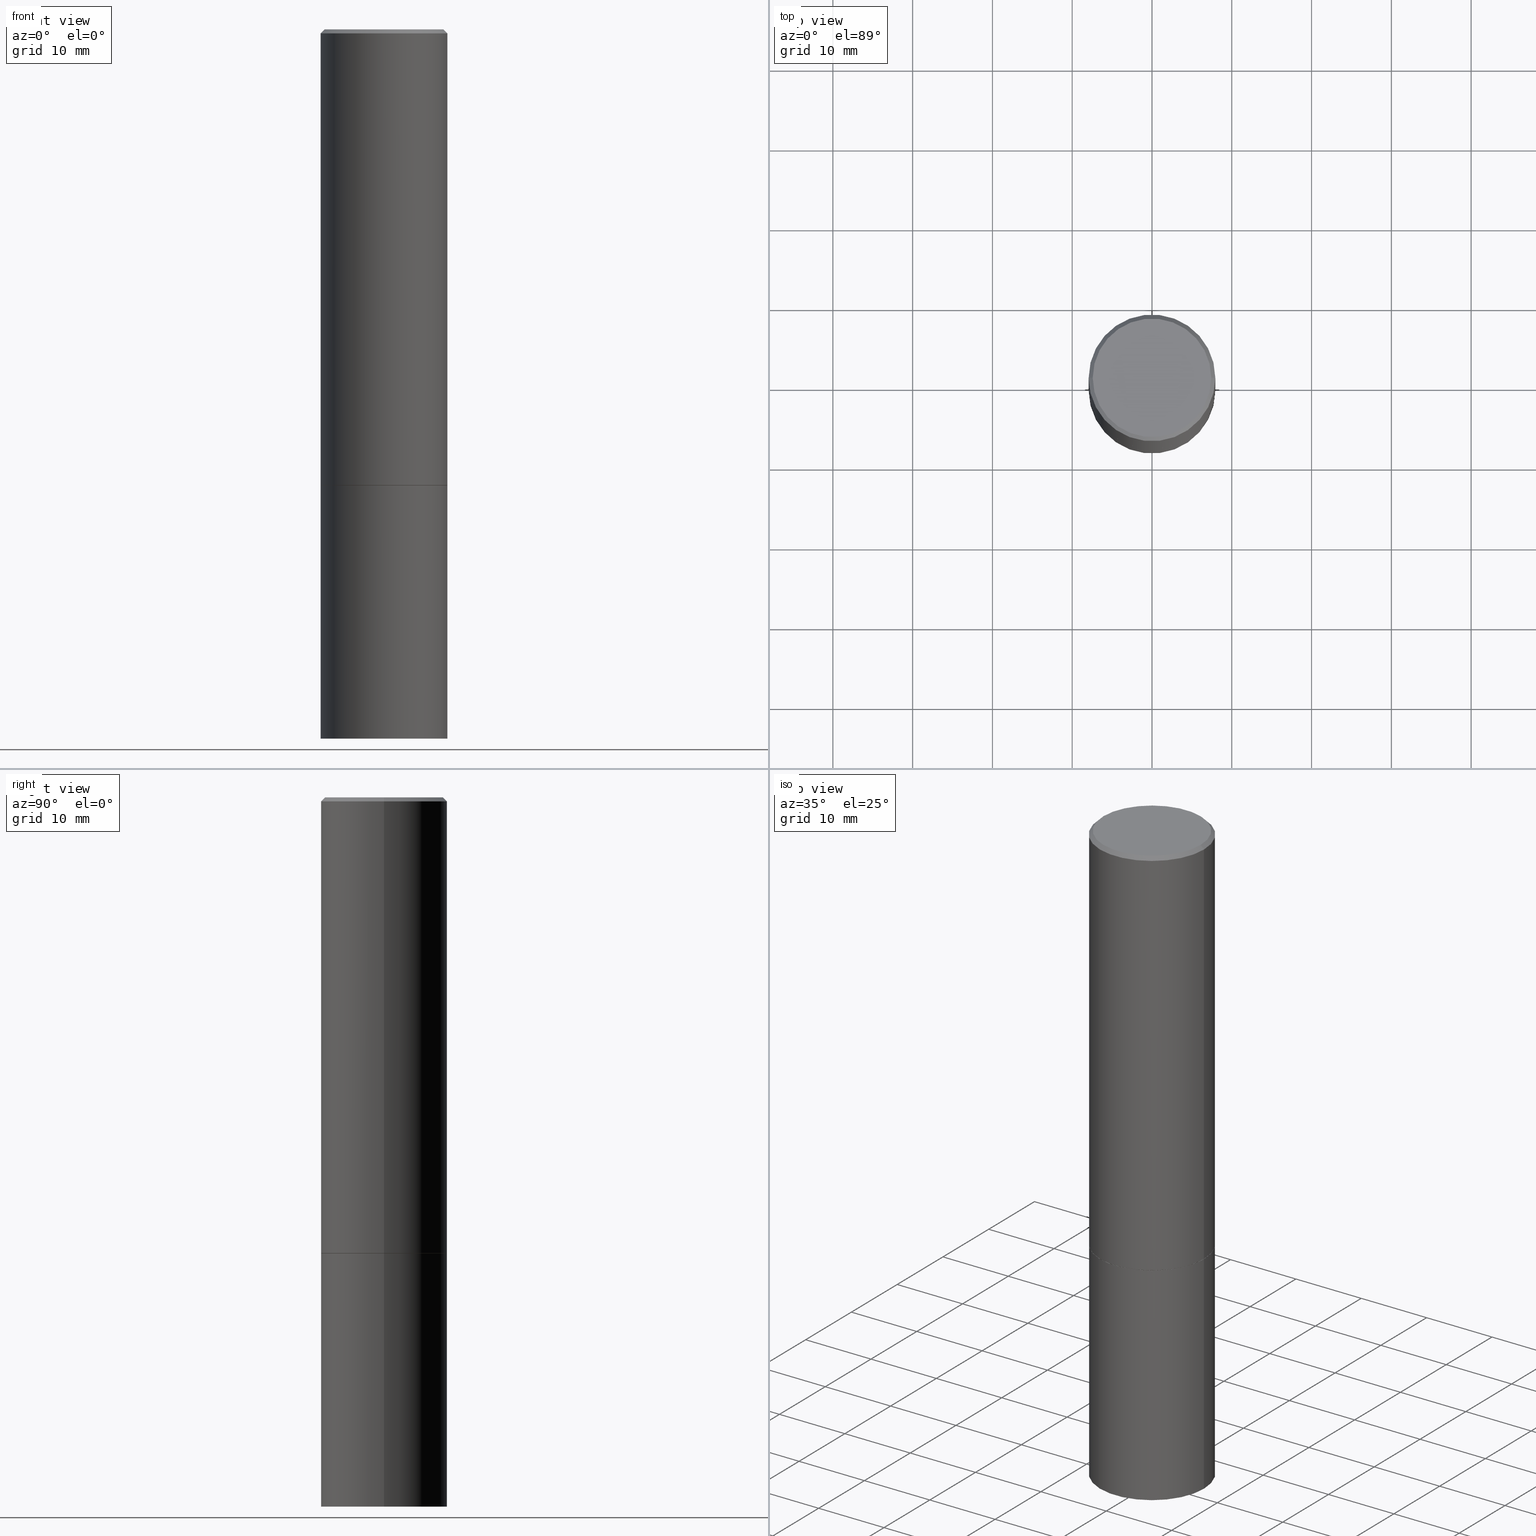
[diagram: canonical four-view strip — front | top / right | iso, engineering-drawing reading convention]
A machine part, canonical four-view strip (front | top / right | iso — engineering-drawing reading convention). The complete STEP part file that produces these views, byte-faithful:
ISO-10303-21;
HEADER;
FILE_DESCRIPTION (( 'STEP AP203' ),
    '1' );
FILE_NAME ('30024.STEP',
    '2023-03-21T20:21:08',
    ( '' ),
    ( '' ),
    'SwSTEP 2.0',
    'SolidWorks 2022',
    '' );
FILE_SCHEMA (( 'CONFIG_CONTROL_DESIGN' ));
ENDSEC;

DATA;
#1 = APPLICATION_PROTOCOL_DEFINITION ( 'international standard', 'config_control_design', 1994, #116 ) ;
#2 = EDGE_LOOP ( 'NONE', ( #200, #54, #253 ) ) ;
#3 = CARTESIAN_POINT ( 'NONE',  ( 8.517872225976000763E-29, -1.216474757820433086E-14, -3.483622568974051870 ) ) ;
#4 = ORIENTED_EDGE ( 'NONE', *, *, #162, .T. ) ;
#5 = DIRECTION ( 'NONE',  ( -2.445468806185136597E-29, 3.491481338843145583E-15, 1.000000000000000000 ) ) ;
#6 = CARTESIAN_POINT ( 'NONE',  ( 0.3124999999999997224, -1.436409031025461138E-14, -3.500000000000000000 ) ) ;
#7 = DIRECTION ( 'NONE',  ( -2.445468806185136597E-29, 3.491481338843145583E-15, 1.000000000000000000 ) ) ;
#8 = EDGE_CURVE ( 'NONE', #82, #297, #304, .T. ) ;
#9 = DIRECTION ( 'NONE',  ( 2.445468806185136597E-29, -3.491481338843145583E-15, -1.000000000000000000 ) ) ;
#10 = CONICAL_SURFACE ( 'NONE', #38, 0.3114999999999999991, 0.7853981633972775267 ) ;
#11 = DIRECTION ( 'NONE',  ( -2.445468806185136597E-29, 3.491481338843145583E-15, 1.000000000000000000 ) ) ;
#12 = CARTESIAN_POINT ( 'NONE',  ( 4.890937612370292426E-31, -6.982962677686317493E-17, -0.02000000000000007674 ) ) ;
#13 = AXIS2_PLACEMENT_3D ( 'NONE', #146, #5, #374 ) ;
#14 = CARTESIAN_POINT ( 'NONE',  ( 5.502304813916556222E-29, -7.855833012397076871E-15, -2.249999999999999556 ) ) ;
#15 = ORIENTED_EDGE ( 'NONE', *, *, #185, .F. ) ;
#16 = LINE ( 'NONE', #377, #122 ) ;
#17 = ORIENTED_EDGE ( 'NONE', *, *, #120, .T. ) ;
#18 = EDGE_CURVE ( 'NONE', #249, #81, #16, .T. ) ;
#19 = DIRECTION ( 'NONE',  ( 1.000000000000000000, -6.982962677686266711E-15, 4.876176775795936353E-29 ) ) ;
#20 = CARTESIAN_POINT ( 'NONE',  ( -0.3114999999999999991, -5.642492390504364798E-15, -2.250000000000000000 ) ) ;
#21 = CALENDAR_DATE ( 2023, 21, 3 ) ;
#22 = EDGE_CURVE ( 'NONE', #269, #326, #254, .T. ) ;
#23 = PERSON_AND_ORGANIZATION_ROLE ( 'design_supplier' ) ;
#24 = ORIENTED_EDGE ( 'NONE', *, *, #74, .T. ) ;
#25 = CONICAL_SURFACE ( 'NONE', #61, 751.2258538476739886, 1.518436449235074148 ) ;
#26 = ORIENTED_EDGE ( 'NONE', *, *, #220, .F. ) ;
#27 = CC_DESIGN_DATE_AND_TIME_ASSIGNMENT ( #259, #232, ( #109 ) ) ;
#28 = DIRECTION ( 'NONE',  ( 1.000000000000000000, 0.000000000000000000, 0.000000000000000000 ) ) ;
#29 = SECURITY_CLASSIFICATION_LEVEL ( 'unclassified' ) ;
#30 = ADVANCED_FACE ( 'NONE', ( #353 ), #370, .F. ) ;
#31 = ORIENTED_EDGE ( 'NONE', *, *, #18, .T. ) ;
#32 = DIRECTION ( 'NONE',  ( -1.000000000000000000, 6.982962677686266711E-15, 0.000000000000000000 ) ) ;
#33 = ORIENTED_EDGE ( 'NONE', *, *, #310, .T. ) ;
#34 = AXIS2_PLACEMENT_3D ( 'NONE', #372, #234, #68 ) ;
#35 = CARTESIAN_POINT ( 'NONE',  ( 4.890937612370292426E-31, -6.982962677686317493E-17, -0.02000000000000007674 ) ) ;
#36 = DIRECTION ( 'NONE',  ( -2.445468806185136597E-29, 3.491481338843145583E-15, 1.000000000000000000 ) ) ;
#37 = FACE_OUTER_BOUND ( 'NONE', #331, .T. ) ;
#38 = AXIS2_PLACEMENT_3D ( 'NONE', #75, #46, #129 ) ;
#39 = FACE_OUTER_BOUND ( 'NONE', #87, .T. ) ;
#40 = CARTESIAN_POINT ( 'NONE',  ( 8.559140821647976968E-29, -1.222018468595100934E-14, -3.500000000000000000 ) ) ;
#41 = DIRECTION ( 'NONE',  ( -2.445468806185136597E-29, 3.491481338843145583E-15, 1.000000000000000000 ) ) ;
#42 = PRODUCT_RELATED_PRODUCT_CATEGORY ( 'detail', '', ( #147 ) ) ;
#43 = CARTESIAN_POINT ( 'NONE',  ( 5.502304813916557343E-29, -7.855833012397078448E-15, -2.250000000000000000 ) ) ;
#44 = LOCAL_TIME ( 16, 21, 8.000000000000000000, #77 ) ;
#45 = DIRECTION ( 'NONE',  ( 1.000000000000000000, -6.982962677686269077E-15, 0.000000000000000000 ) ) ;
#46 = DIRECTION ( 'NONE',  ( -2.445468806185136597E-29, 3.491481338843145583E-15, 1.000000000000000000 ) ) ;
#47 = CARTESIAN_POINT ( 'NONE',  ( 1.047973897810563057E-27, -1.496228984211908293E-13, -42.85370130913153019 ) ) ;
#48 = CARTESIAN_POINT ( 'NONE',  ( 0.3125000000000000000, -2.182175836776958347E-15, 1.523805242436230075E-29 ) ) ;
#49 = CC_DESIGN_PERSON_AND_ORGANIZATION_ASSIGNMENT ( #100, #172, ( #135 ) ) ;
#50 = VECTOR ( 'NONE', #286, 39.37007874015748143 ) ;
#51 = VECTOR ( 'NONE', #371, 39.37007874015748143 ) ;
#52 = DATE_AND_TIME ( #325, #157 ) ;
#53 = APPROVAL_DATE_TIME ( #57, #332 ) ;
#54 = ORIENTED_EDGE ( 'NONE', *, *, #333, .T. ) ;
#55 = AXIS2_PLACEMENT_3D ( 'NONE', #184, #41, #288 ) ;
#56 = VERTEX_POINT ( 'NONE', #171 ) ;
#57 = DATE_AND_TIME ( #330, #240 ) ;
#58 = EDGE_LOOP ( 'NONE', ( #33, #59, #206, #102 ) ) ;
#59 = ORIENTED_EDGE ( 'NONE', *, *, #359, .T. ) ;
#60 = LINE ( 'NONE', #367, #51 ) ;
#61 = AXIS2_PLACEMENT_3D ( 'NONE', #111, #119, #32 ) ;
#62 = FACE_OUTER_BOUND ( 'NONE', #352, .T. ) ;
#63 = CARTESIAN_POINT ( 'NONE',  ( 0.3125000000000000000, -1.003451736783519063E-14, -2.248999999999999666 ) ) ;
#64 = CARTESIAN_POINT ( 'NONE',  ( 5.499859345110371740E-29, -7.852341531058233864E-15, -2.248999999999999666 ) ) ;
#65 = CC_DESIGN_PERSON_AND_ORGANIZATION_ASSIGNMENT ( #298, #23, ( #135 ) ) ;
#66 = FACE_OUTER_BOUND ( 'NONE', #2, .T. ) ;
#67 = VECTOR ( 'NONE', #212, 39.37007874015748143 ) ;
#68 = DIRECTION ( 'NONE',  ( 1.000000000000000000, -6.982962677686269077E-15, 0.000000000000000000 ) ) ;
#69 = CYLINDRICAL_SURFACE ( 'NONE', #256, 0.3124999999999999445 ) ;
#70 = DIRECTION ( 'NONE',  ( -2.445468806185136597E-29, 3.491481338843145583E-15, 1.000000000000000000 ) ) ;
#71 =( NAMED_UNIT ( * ) PLANE_ANGLE_UNIT ( ) SI_UNIT ( $, .RADIAN. ) );
#72 = EDGE_LOOP ( 'NONE', ( #219, #145, #290, #137 ) ) ;
#73 = CC_DESIGN_APPROVAL ( #332, ( #135 ) ) ;
#74 = EDGE_CURVE ( 'NONE', #297, #82, #155, .T. ) ;
#75 = CARTESIAN_POINT ( 'NONE',  ( 5.502304813916557343E-29, -7.855833012397078448E-15, -2.250000000000000000 ) ) ;
#76 = DIRECTION ( 'NONE',  ( -2.445468806185136597E-29, 3.491481338843145583E-15, 1.000000000000000000 ) ) ;
#77 = COORDINATED_UNIVERSAL_TIME_OFFSET ( 5, 0, .BEHIND. ) ;
#78 = AXIS2_PLACEMENT_3D ( 'NONE', #114, #271, #242 ) ;
#79 = DATE_TIME_ROLE ( 'classification_date' ) ;
#80 = SHAPE_DEFINITION_REPRESENTATION ( #250, #274 ) ;
#81 = VERTEX_POINT ( 'NONE', #248 ) ;
#82 = VERTEX_POINT ( 'NONE', #6 ) ;
#83 = DIRECTION ( 'NONE',  ( 0.000000000000000000, 0.000000000000000000, 1.000000000000000000 ) ) ;
#84 = EDGE_LOOP ( 'NONE', ( #197, #90, #190, #261 ) ) ;
#85 = CLOSED_SHELL ( 'NONE', ( #381, #126, #30, #243, #103 ) ) ;
#86 = PERSON_AND_ORGANIZATION ( #364, #316 ) ;
#87 = EDGE_LOOP ( 'NONE', ( #328, #4 ) ) ;
#88 = EDGE_LOOP ( 'NONE', ( #229, #336, #294 ) ) ;
#89 = CARTESIAN_POINT ( 'NONE',  ( -0.3125000000000000000, -7.817562799923730025E-15, -2.249999999999999556 ) ) ;
#90 = ORIENTED_EDGE ( 'NONE', *, *, #215, .T. ) ;
#91 = DIRECTION ( 'NONE',  ( 1.000000000000000000, -6.982962677686266711E-15, 0.000000000000000000 ) ) ;
#92 = CARTESIAN_POINT ( 'NONE',  ( 4.890937612370292426E-31, -6.982962677686317493E-17, -0.02000000000000007674 ) ) ;
#93 = DIRECTION ( 'NONE',  ( -2.445468806185136597E-29, 3.491481338843145583E-15, 1.000000000000000000 ) ) ;
#94 = DIRECTION ( 'NONE',  ( -1.000000000000000000, 6.982962677686265922E-15, -4.876176775795935793E-29 ) ) ;
#95 = DIRECTION ( 'NONE',  ( -2.445468806185136597E-29, 3.491481338843145583E-15, 1.000000000000000000 ) ) ;
#96 = ORIENTED_EDGE ( 'NONE', *, *, #215, .F. ) ;
#97 = AXIS2_PLACEMENT_3D ( 'NONE', #188, #313, #45 ) ;
#98 = LINE ( 'NONE', #158, #164 ) ;
#99 = CARTESIAN_POINT ( 'NONE',  ( -0.3124999999999998890, 2.112346210000094260E-15, -0.02000000000000007674 ) ) ;
#100 = PERSON_AND_ORGANIZATION ( #364, #316 ) ;
#101 = VECTOR ( 'NONE', #181, 39.37007874015748143 ) ;
#102 = ORIENTED_EDGE ( 'NONE', *, *, #323, .F. ) ;
#103 = ADVANCED_FACE ( 'NONE', ( #62 ), #176, .F. ) ;
#104 = MANIFOLD_SOLID_BREP ( 'Body-Move/Copy2[1]', #85 ) ;
#105 = DATE_AND_TIME ( #21, #117 ) ;
#106 = EDGE_LOOP ( 'NONE', ( #363, #140, #390, #174 ) ) ;
#107 = PERSON_AND_ORGANIZATION ( #364, #316 ) ;
#108 = CIRCLE ( 'NONE', #167, 0.3114999999999999991 ) ;
#109 = PRODUCT_DEFINITION ( 'UNKNOWN', '', #135, #238 ) ;
#110 = VERTEX_POINT ( 'NONE', #89 ) ;
#111 = CARTESIAN_POINT ( 'NONE',  ( 1.047973897810563057E-27, -1.496228984211908293E-13, -42.85370130913153019 ) ) ;
#112 = CARTESIAN_POINT ( 'NONE',  ( 2.182175836777013173E-15, 0.3124999999999921729, -2.250000000000000888 ) ) ;
#113 = LINE ( 'NONE', #307, #101 ) ;
#114 = CARTESIAN_POINT ( 'NONE',  ( 5.502304813916557343E-29, -7.855833012397078448E-15, -2.250000000000000000 ) ) ;
#115 = CIRCLE ( 'NONE', #247, 0.2924999999999998712 ) ;
#116 = APPLICATION_CONTEXT ( 'configuration controlled 3d designs of mechanical parts and assemblies' ) ;
#117 = LOCAL_TIME ( 16, 21, 8.000000000000000000, #266 ) ;
#118 = FACE_OUTER_BOUND ( 'NONE', #72, .T. ) ;
#119 = DIRECTION ( 'NONE',  ( 2.445468806185136597E-29, -3.491481338843145583E-15, -1.000000000000000000 ) ) ;
#120 = EDGE_CURVE ( 'NONE', #326, #81, #311, .T. ) ;
#121 =( CONVERSION_BASED_UNIT ( 'INCH', #193 ) LENGTH_UNIT ( ) NAMED_UNIT ( #281 ) );
#122 = VECTOR ( 'NONE', #319, 39.37007874015748143 ) ;
#123 = AXIS2_PLACEMENT_3D ( 'NONE', #282, #76, #19 ) ;
#124 = AXIS2_PLACEMENT_3D ( 'NONE', #279, #11, #342 ) ;
#125 = VERTEX_POINT ( 'NONE', #3 ) ;
#126 = ADVANCED_FACE ( 'NONE', ( #66 ), #25, .F. ) ;
#127 =( LENGTH_UNIT ( ) NAMED_UNIT ( * ) SI_UNIT ( $, .METRE. ) );
#128 = AXIS2_PLACEMENT_3D ( 'NONE', #47, #385, #362 ) ;
#129 = DIRECTION ( 'NONE',  ( 1.000000000000000000, -6.982962677686269077E-15, 0.000000000000000000 ) ) ;
#130 = CALENDAR_DATE ( 2023, 21, 3 ) ;
#131 = DIRECTION ( 'NONE',  ( 2.438088387897960049E-29, -3.491481338843145188E-15, -1.000000000000000000 ) ) ;
#132 = CALENDAR_DATE ( 2023, 21, 3 ) ;
#133 = ORIENTED_EDGE ( 'NONE', *, *, #315, .F. ) ;
#134 = APPROVAL_PERSON_ORGANIZATION ( #291, #277, #327 ) ;
#135 = PRODUCT_DEFINITION_FORMATION_WITH_SPECIFIED_SOURCE ( 'ANY', '', #147, .NOT_KNOWN. ) ;
#136 = APPROVAL_DATE_TIME ( #105, #277 ) ;
#137 = ORIENTED_EDGE ( 'NONE', *, *, #120, .F. ) ;
#138 = EDGE_CURVE ( 'NONE', #204, #110, #329, .T. ) ;
#139 = APPLICATION_CONTEXT ( 'configuration controlled 3d designs of mechanical parts and assemblies' ) ;
#140 = ORIENTED_EDGE ( 'NONE', *, *, #305, .T. ) ;
#141 = EDGE_LOOP ( 'NONE', ( #169, #368, #226, #334 ) ) ;
#142 = ADVANCED_FACE ( 'NONE', ( #236 ), #366, .T. ) ;
#143 =( GEOMETRIC_REPRESENTATION_CONTEXT ( 3 ) GLOBAL_UNCERTAINTY_ASSIGNED_CONTEXT ( ( #340 ) ) GLOBAL_UNIT_ASSIGNED_CONTEXT ( ( #121, #71, #350 ) ) REPRESENTATION_CONTEXT ( 'NONE', 'WORKASPACE' ) );
#144 = CARTESIAN_POINT ( 'NONE',  ( 2.042516583223231751E-15, 0.2924999999999998712, -1.021258291611619622E-15 ) ) ;
#145 = ORIENTED_EDGE ( 'NONE', *, *, #194, .T. ) ;
#146 = CARTESIAN_POINT ( 'NONE',  ( 8.559140821647976968E-29, -1.222018468595100934E-14, -3.500000000000000000 ) ) ;
#147 = PRODUCT ( '30024', '30024', '', ( #296 ) ) ;
#148 = CARTESIAN_POINT ( 'NONE',  ( -1.744387058525889008E-18, -1.216300319114572191E-14, -3.483622568974051870 ) ) ;
#149 = PLANE ( 'NONE',  #231 ) ;
#150 = CYLINDRICAL_SURFACE ( 'NONE', #124, 0.3125000000000000000 ) ;
#151 = CIRCLE ( 'NONE', #239, 0.3114999999999999991 ) ;
#152 = DIRECTION ( 'NONE',  ( 2.445468806185136597E-29, -3.491481338843145583E-15, -1.000000000000000000 ) ) ;
#153 = CARTESIAN_POINT ( 'NONE',  ( -0.3125000000000000000, -1.740639529667234514E-15, -2.248999999999999666 ) ) ;
#154 = LINE ( 'NONE', #347, #379 ) ;
#155 = CIRCLE ( 'NONE', #13, 0.3125000000000000000 ) ;
#156 = AXIS2_PLACEMENT_3D ( 'NONE', #112, #131, #210 ) ;
#157 = LOCAL_TIME ( 16, 21, 8.000000000000000000, #196 ) ;
#158 = CARTESIAN_POINT ( 'NONE',  ( 1.744387058696270637E-18, -1.216300319114572191E-14, -3.483622568974051870 ) ) ;
#159 = ADVANCED_FACE ( 'NONE', ( #39 ), #149, .F. ) ;
#160 = CARTESIAN_POINT ( 'NONE',  ( -0.3124999999999998890, 2.112346210000094260E-15, -0.02000000000000007674 ) ) ;
#161 = CARTESIAN_POINT ( 'NONE',  ( -0.3114999999999999991, -5.637193936156143185E-15, -2.250000000000000000 ) ) ;
#162 = EDGE_CURVE ( 'NONE', #249, #269, #115, .T. ) ;
#163 = DIRECTION ( 'NONE',  ( 1.000000000000000000, -6.982962677686269077E-15, 0.000000000000000000 ) ) ;
#164 = VECTOR ( 'NONE', #284, 39.37007874015748143 ) ;
#165 = CARTESIAN_POINT ( 'NONE',  ( 0.000000000000000000, 0.000000000000000000, 0.000000000000000000 ) ) ;
#166 = ORIENTED_EDGE ( 'NONE', *, *, #22, .T. ) ;
#167 = AXIS2_PLACEMENT_3D ( 'NONE', #43, #95, #163 ) ;
#168 = APPROVAL_STATUS ( 'not_yet_approved' ) ;
#169 = ORIENTED_EDGE ( 'NONE', *, *, #305, .F. ) ;
#170 = CC_DESIGN_PERSON_AND_ORGANIZATION_ASSIGNMENT ( #107, #389, ( #177 ) ) ;
#171 = CARTESIAN_POINT ( 'NONE',  ( 0.3114999999999999991, -1.003102588649635078E-14, -2.250000000000000000 ) ) ;
#172 = PERSON_AND_ORGANIZATION_ROLE ( 'creator' ) ;
#173 = ADVANCED_FACE ( 'NONE', ( #369 ), #344, .T. ) ;
#174 = ORIENTED_EDGE ( 'NONE', *, *, #235, .F. ) ;
#175 = VERTEX_POINT ( 'NONE', #63 ) ;
#176 = PLANE ( 'NONE',  #156 ) ;
#177 = SECURITY_CLASSIFICATION ( '', '', #29 ) ;
#178 = DIRECTION ( 'NONE',  ( 1.000000000000000000, -6.982962677686269077E-15, 0.000000000000000000 ) ) ;
#179 = DIRECTION ( 'NONE',  ( 1.000000000000000000, -6.982962677686266711E-15, 4.876176775795935232E-29 ) ) ;
#180 = EDGE_CURVE ( 'NONE', #125, #297, #182, .T. ) ;
#181 = DIRECTION ( 'NONE',  ( 0.7071067811864267805, -2.468850131080992517E-15, 0.7071067811866682540 ) ) ;
#182 = LINE ( 'NONE', #148, #67 ) ;
#183 = CIRCLE ( 'NONE', #283, 0.3125000000000000000 ) ;
#184 = CARTESIAN_POINT ( 'NONE',  ( 5.499859345110371740E-29, -7.852341531058233864E-15, -2.248999999999999666 ) ) ;
#185 = EDGE_CURVE ( 'NONE', #269, #249, #201, .T. ) ;
#186 = DIRECTION ( 'NONE',  ( -2.438088387897960049E-29, 3.491481338843145188E-15, 1.000000000000000000 ) ) ;
#187 = DIRECTION ( 'NONE',  ( 1.000000000000000000, -6.982962677686269077E-15, 0.000000000000000000 ) ) ;
#188 = CARTESIAN_POINT ( 'NONE',  ( 5.502304813916556222E-29, -7.855833012397076871E-15, -2.249999999999999556 ) ) ;
#189 = AXIS2_PLACEMENT_3D ( 'NONE', #209, #7, #335 ) ;
#190 = ORIENTED_EDGE ( 'NONE', *, *, #138, .F. ) ;
#191 = LINE ( 'NONE', #20, #207 ) ;
#192 = ORIENTED_EDGE ( 'NONE', *, *, #315, .T. ) ;
#193 = LENGTH_MEASURE_WITH_UNIT ( LENGTH_MEASURE( 0.02539999999999999897 ), #127 );
#194 = EDGE_CURVE ( 'NONE', #365, #175, #183, .T. ) ;
#195 = PERSON_AND_ORGANIZATION ( #364, #316 ) ;
#196 = COORDINATED_UNIVERSAL_TIME_OFFSET ( 5, 0, .BEHIND. ) ;
#197 = ORIENTED_EDGE ( 'NONE', *, *, #8, .T. ) ;
#198 = PERSON_AND_ORGANIZATION_ROLE ( 'design_owner' ) ;
#199 = CC_DESIGN_PERSON_AND_ORGANIZATION_ASSIGNMENT ( #86, #225, ( #109 ) ) ;
#200 = ORIENTED_EDGE ( 'NONE', *, *, #180, .F. ) ;
#201 = CIRCLE ( 'NONE', #189, 0.2924999999999998712 ) ;
#202 = APPLICATION_PROTOCOL_DEFINITION ( 'international standard', 'config_control_design', 1994, #139 ) ;
#203 = ORIENTED_EDGE ( 'NONE', *, *, #162, .F. ) ;
#204 = VERTEX_POINT ( 'NONE', #280 ) ;
#205 = CARTESIAN_POINT ( 'NONE',  ( 5.502304813916557343E-29, -7.855833012397078448E-15, -2.250000000000000000 ) ) ;
#206 = ORIENTED_EDGE ( 'NONE', *, *, #245, .F. ) ;
#207 = VECTOR ( 'NONE', #255, 39.37007874015748143 ) ;
#208 = DIRECTION ( 'NONE',  ( 1.000000000000000000, -6.982962677686265133E-15, 0.000000000000000000 ) ) ;
#209 = CARTESIAN_POINT ( 'NONE',  ( 0.000000000000000000, 0.000000000000000000, 0.000000000000000000 ) ) ;
#210 = DIRECTION ( 'NONE',  ( -1.000000000000000000, 6.982962677686265922E-15, -4.876176775795935793E-29 ) ) ;
#211 = CLOSED_SHELL ( 'NONE', ( #173, #343, #237, #142, #230, #273, #346, #159 ) ) ;
#212 = DIRECTION ( 'NONE',  ( -0.9986295347545742773, 6.790662755453668466E-15, -0.05233595624293643084 ) ) ;
#213 = FACE_OUTER_BOUND ( 'NONE', #141, .T. ) ;
#214 = ORIENTED_EDGE ( 'NONE', *, *, #299, .T. ) ;
#215 = EDGE_CURVE ( 'NONE', #297, #110, #60, .T. ) ;
#216 = DIRECTION ( 'NONE',  ( 1.000000000000000000, -6.982962677686266711E-15, 4.876176775795936353E-29 ) ) ;
#217 = VECTOR ( 'NONE', #378, 39.37007874015748143 ) ;
#218 = PLANE ( 'NONE',  #270 ) ;
#219 = ORIENTED_EDGE ( 'NONE', *, *, #359, .F. ) ;
#220 = EDGE_CURVE ( 'NONE', #361, #56, #151, .T. ) ;
#221 = DIRECTION ( 'NONE',  ( 1.000000000000000000, -6.982962677686265922E-15, 4.876176775795935793E-29 ) ) ;
#222 = ORIENTED_EDGE ( 'NONE', *, *, #22, .F. ) ;
#223 = AXIS2_PLACEMENT_3D ( 'NONE', #92, #373, #91 ) ;
#224 = LOCAL_TIME ( 16, 21, 8.000000000000000000, #228 ) ;
#225 = PERSON_AND_ORGANIZATION_ROLE ( 'creator' ) ;
#226 = ORIENTED_EDGE ( 'NONE', *, *, #235, .T. ) ;
#227 = EDGE_LOOP ( 'NONE', ( #267, #26 ) ) ;
#228 = COORDINATED_UNIVERSAL_TIME_OFFSET ( 5, 0, .BEHIND. ) ;
#229 = ORIENTED_EDGE ( 'NONE', *, *, #333, .F. ) ;
#230 = ADVANCED_FACE ( 'NONE', ( #118 ), #312, .T. ) ;
#231 = AXIS2_PLACEMENT_3D ( 'NONE', #144, #339, #94 ) ;
#232 = DATE_TIME_ROLE ( 'creation_date' ) ;
#233 = EDGE_LOOP ( 'NONE', ( #203, #31, #272, #222 ) ) ;
#234 = DIRECTION ( 'NONE',  ( -2.445468806185136597E-29, 3.491481338843145583E-15, 1.000000000000000000 ) ) ;
#235 = EDGE_CURVE ( 'NONE', #56, #175, #113, .T. ) ;
#236 = FACE_OUTER_BOUND ( 'NONE', #388, .T. ) ;
#237 = ADVANCED_FACE ( 'NONE', ( #309 ), #295, .T. ) ;
#238 = DESIGN_CONTEXT ( 'detailed design', #139, 'design' ) ;
#239 = AXIS2_PLACEMENT_3D ( 'NONE', #205, #93, #178 ) ;
#240 = LOCAL_TIME ( 16, 21, 8.000000000000000000, #260 ) ;
#241 = DIRECTION ( 'NONE',  ( 1.000000000000000000, -6.982962677686266711E-15, 4.876176775795936353E-29 ) ) ;
#242 = DIRECTION ( 'NONE',  ( 1.000000000000000000, -6.982962677686269077E-15, 0.000000000000000000 ) ) ;
#243 = ADVANCED_FACE ( 'NONE', ( #37 ), #150, .T. ) ;
#244 = DIRECTION ( 'NONE',  ( -2.445468806185136597E-29, 3.491481338843145583E-15, 1.000000000000000000 ) ) ;
#245 = EDGE_CURVE ( 'NONE', #81, #326, #289, .T. ) ;
#246 = CARTESIAN_POINT ( 'NONE',  ( -0.3124999999999997224, -1.003800884917405415E-14, -3.500000000000000000 ) ) ;
#247 = AXIS2_PLACEMENT_3D ( 'NONE', #308, #244, #179 ) ;
#248 = CARTESIAN_POINT ( 'NONE',  ( 0.3124999999999998890, -2.213735251080466123E-15, -0.02000000000000007674 ) ) ;
#249 = VERTEX_POINT ( 'NONE', #376 ) ;
#250 = PRODUCT_DEFINITION_SHAPE ( 'NONE', 'NONE',  #109 ) ;
#251 = DIRECTION ( 'NONE',  ( -2.445468806185136597E-29, 3.491481338843145583E-15, 1.000000000000000000 ) ) ;
#252 = FACE_OUTER_BOUND ( 'NONE', #227, .T. ) ;
#253 = ORIENTED_EDGE ( 'NONE', *, *, #74, .F. ) ;
#254 = LINE ( 'NONE', #160, #50 ) ;
#255 = DIRECTION ( 'NONE',  ( -0.7071067811864267805, 7.493145998869918709E-15, 0.7071067811866682540 ) ) ;
#256 = AXIS2_PLACEMENT_3D ( 'NONE', #382, #317, #216 ) ;
#257 = DIRECTION ( 'NONE',  ( -2.445468806185136877E-29, 3.491481338843145188E-15, 1.000000000000000000 ) ) ;
#258 = EDGE_CURVE ( 'NONE', #56, #361, #108, .T. ) ;
#259 = DATE_AND_TIME ( #130, #224 ) ;
#260 = COORDINATED_UNIVERSAL_TIME_OFFSET ( 5, 0, .BEHIND. ) ;
#261 = ORIENTED_EDGE ( 'NONE', *, *, #299, .F. ) ;
#262 = AXIS2_PLACEMENT_3D ( 'NONE', #35, #152, #302 ) ;
#263 = CC_DESIGN_DATE_AND_TIME_ASSIGNMENT ( #356, #79, ( #177 ) ) ;
#264 = CC_DESIGN_APPROVAL ( #321, ( #177 ) ) ;
#265 = APPROVAL_STATUS ( 'not_yet_approved' ) ;
#266 = COORDINATED_UNIVERSAL_TIME_OFFSET ( 5, 0, .BEHIND. ) ;
#267 = ORIENTED_EDGE ( 'NONE', *, *, #258, .F. ) ;
#268 = APPROVAL_ROLE ( '' ) ;
#269 = VERTEX_POINT ( 'NONE', #380 ) ;
#270 = AXIS2_PLACEMENT_3D ( 'NONE', #14, #186, #221 ) ;
#271 = DIRECTION ( 'NONE',  ( -2.445468806185136597E-29, 3.491481338843145583E-15, 1.000000000000000000 ) ) ;
#272 = ORIENTED_EDGE ( 'NONE', *, *, #245, .T. ) ;
#273 = ADVANCED_FACE ( 'NONE', ( #213 ), #10, .T. ) ;
#274 = ADVANCED_BREP_SHAPE_REPRESENTATION ( '30024', ( #104, #383, #357 ), #143 ) ;
#275 = CARTESIAN_POINT ( 'NONE',  ( 4.890937612370292426E-31, -6.982962677686317493E-17, -0.02000000000000007674 ) ) ;
#276 = CARTESIAN_POINT ( 'NONE',  ( 0.000000000000000000, 0.000000000000000000, 0.000000000000000000 ) ) ;
#277 = APPROVAL ( #168, 'UNSPECIFIED' ) ;
#278 = CIRCLE ( 'NONE', #97, 0.3125000000000000000 ) ;
#279 = CARTESIAN_POINT ( 'NONE',  ( 0.000000000000000000, 0.000000000000000000, 0.000000000000000000 ) ) ;
#280 = CARTESIAN_POINT ( 'NONE',  ( 0.3125000000000000000, -1.003800884917403522E-14, -2.249999999999999556 ) ) ;
#281 = DIMENSIONAL_EXPONENTS ( 1.000000000000000000, 0.000000000000000000, 0.000000000000000000, 0.000000000000000000, 0.000000000000000000, 0.000000000000000000, 0.000000000000000000 ) ;
#282 = CARTESIAN_POINT ( 'NONE',  ( 0.000000000000000000, 0.000000000000000000, 0.000000000000000000 ) ) ;
#283 = AXIS2_PLACEMENT_3D ( 'NONE', #64, #345, #208 ) ;
#284 = DIRECTION ( 'NONE',  ( 0.9986295347545742773, -7.033825938271997912E-15, -0.05233595624293643084 ) ) ;
#285 = CYLINDRICAL_SURFACE ( 'NONE', #123, 0.3125000000000000000 ) ;
#286 = DIRECTION ( 'NONE',  ( -0.7071067811865466846, 2.468850131082247989E-15, -0.7071067811865483499 ) ) ;
#287 = LINE ( 'NONE', #320, #358 ) ;
#288 = DIRECTION ( 'NONE',  ( 1.000000000000000000, -6.982962677686265133E-15, 0.000000000000000000 ) ) ;
#289 = CIRCLE ( 'NONE', #337, 0.3124999999999998890 ) ;
#290 = ORIENTED_EDGE ( 'NONE', *, *, #323, .T. ) ;
#291 = PERSON_AND_ORGANIZATION ( #364, #316 ) ;
#292 = PERSON_AND_ORGANIZATION ( #364, #316 ) ;
#293 = AXIS2_PLACEMENT_3D ( 'NONE', #40, #70, #187 ) ;
#294 = ORIENTED_EDGE ( 'NONE', *, *, #8, .F. ) ;
#295 = CONICAL_SURFACE ( 'NONE', #262, 0.3124999999999998890, 0.7853981633974471688 ) ;
#296 = MECHANICAL_CONTEXT ( 'NONE', #116, 'mechanical' ) ;
#297 = VERTEX_POINT ( 'NONE', #246 ) ;
#298 = PERSON_AND_ORGANIZATION ( #364, #316 ) ;
#299 = EDGE_CURVE ( 'NONE', #82, #204, #354, .T. ) ;
#300 = ORIENTED_EDGE ( 'NONE', *, *, #18, .F. ) ;
#301 = CC_DESIGN_PERSON_AND_ORGANIZATION_ASSIGNMENT ( #292, #198, ( #147 ) ) ;
#302 = DIRECTION ( 'NONE',  ( -1.000000000000000000, 6.982962677686266711E-15, 0.000000000000000000 ) ) ;
#303 = ORIENTED_EDGE ( 'NONE', *, *, #138, .T. ) ;
#304 = CIRCLE ( 'NONE', #293, 0.3125000000000000000 ) ;
#305 = EDGE_CURVE ( 'NONE', #361, #365, #191, .T. ) ;
#306 = CIRCLE ( 'NONE', #55, 0.3125000000000000000 ) ;
#307 = CARTESIAN_POINT ( 'NONE',  ( 0.3114999999999999991, -1.003102588649635078E-14, -2.250000000000000000 ) ) ;
#308 = CARTESIAN_POINT ( 'NONE',  ( 0.000000000000000000, 0.000000000000000000, 0.000000000000000000 ) ) ;
#309 = FACE_OUTER_BOUND ( 'NONE', #233, .T. ) ;
#310 = EDGE_CURVE ( 'NONE', #175, #365, #306, .T. ) ;
#311 = CIRCLE ( 'NONE', #223, 0.3124999999999998890 ) ;
#312 = CYLINDRICAL_SURFACE ( 'NONE', #349, 0.3124999999999999445 ) ;
#313 = DIRECTION ( 'NONE',  ( -2.445468806185136597E-29, 3.491481338843145583E-15, 1.000000000000000000 ) ) ;
#314 = FACE_OUTER_BOUND ( 'NONE', #84, .T. ) ;
#315 = EDGE_CURVE ( 'NONE', #110, #204, #278, .T. ) ;
#316 = ORGANIZATION ( 'UNSPECIFIED', 'UNSPECIFIED', '' ) ;
#317 = DIRECTION ( 'NONE',  ( -2.445468806185136597E-29, 3.491481338843145583E-15, 1.000000000000000000 ) ) ;
#318 = APPROVAL_PERSON_ORGANIZATION ( #195, #321, #386 ) ;
#319 = DIRECTION ( 'NONE',  ( 0.7071067811865466846, -7.319954787623252890E-15, -0.7071067811865483499 ) ) ;
#320 = CARTESIAN_POINT ( 'NONE',  ( -0.3124999999999999445, 2.220446049250312686E-15, -1.537167215704657671E-29 ) ) ;
#321 = APPROVAL ( #324, 'UNSPECIFIED' ) ;
#322 = DIRECTION ( 'NONE',  ( 1.000000000000000000, -6.982962677686266711E-15, 0.000000000000000000 ) ) ;
#323 = EDGE_CURVE ( 'NONE', #175, #81, #154, .T. ) ;
#324 = APPROVAL_STATUS ( 'not_yet_approved' ) ;
#325 = CALENDAR_DATE ( 2023, 21, 3 ) ;
#326 = VERTEX_POINT ( 'NONE', #99 ) ;
#327 = APPROVAL_ROLE ( '' ) ;
#328 = ORIENTED_EDGE ( 'NONE', *, *, #185, .T. ) ;
#329 = CIRCLE ( 'NONE', #34, 0.3125000000000000000 ) ;
#330 = CALENDAR_DATE ( 2023, 21, 3 ) ;
#331 = EDGE_LOOP ( 'NONE', ( #96, #24, #214, #133 ) ) ;
#332 = APPROVAL ( #265, 'UNSPECIFIED' ) ;
#333 = EDGE_CURVE ( 'NONE', #125, #82, #98, .T. ) ;
#334 = ORIENTED_EDGE ( 'NONE', *, *, #194, .F. ) ;
#335 = DIRECTION ( 'NONE',  ( 1.000000000000000000, -6.982962677686266711E-15, 4.876176775795935232E-29 ) ) ;
#336 = ORIENTED_EDGE ( 'NONE', *, *, #180, .T. ) ;
#337 = AXIS2_PLACEMENT_3D ( 'NONE', #12, #251, #322 ) ;
#338 = APPROVAL_PERSON_ORGANIZATION ( #384, #332, #268 ) ;
#339 = DIRECTION ( 'NONE',  ( 2.438088387897960049E-29, -3.491481338843145188E-15, -1.000000000000000000 ) ) ;
#340 = UNCERTAINTY_MEASURE_WITH_UNIT (LENGTH_MEASURE( 1.000000000000000082E-05 ), #121, 'distance_accuracy_value', 'NONE');
#341 = DIRECTION ( 'NONE',  ( -1.000000000000000000, 6.982962677686266711E-15, 0.000000000000000000 ) ) ;
#342 = DIRECTION ( 'NONE',  ( 1.000000000000000000, -6.982962677686266711E-15, 4.876176775795936353E-29 ) ) ;
#343 = ADVANCED_FACE ( 'NONE', ( #348 ), #69, .T. ) ;
#344 = CONICAL_SURFACE ( 'NONE', #78, 0.3114999999999999991, 0.7853981633972775267 ) ;
#345 = DIRECTION ( 'NONE',  ( -2.445468806185136597E-29, 3.491481338843145583E-15, 1.000000000000000000 ) ) ;
#346 = ADVANCED_FACE ( 'NONE', ( #252 ), #218, .F. ) ;
#347 = CARTESIAN_POINT ( 'NONE',  ( 0.3124999999999999445, -2.182175836776957953E-15, 1.523805242436229795E-29 ) ) ;
#348 = FACE_OUTER_BOUND ( 'NONE', #58, .T. ) ;
#349 = AXIS2_PLACEMENT_3D ( 'NONE', #276, #36, #241 ) ;
#350 =( NAMED_UNIT ( * ) SI_UNIT ( $, .STERADIAN. ) SOLID_ANGLE_UNIT ( ) );
#351 = CC_DESIGN_SECURITY_CLASSIFICATION ( #177, ( #135 ) ) ;
#352 = EDGE_LOOP ( 'NONE', ( #303, #192 ) ) ;
#353 = FACE_OUTER_BOUND ( 'NONE', #88, .T. ) ;
#354 = LINE ( 'NONE', #48, #217 ) ;
#355 = DIRECTION ( 'NONE',  ( -2.445468806185136877E-29, 3.491481338843145188E-15, 1.000000000000000000 ) ) ;
#356 = DATE_AND_TIME ( #132, #44 ) ;
#357 = AXIS2_PLACEMENT_3D ( 'NONE', #165, #83, #28 ) ;
#358 = VECTOR ( 'NONE', #355, 39.37007874015748143 ) ;
#359 = EDGE_CURVE ( 'NONE', #365, #326, #287, .T. ) ;
#360 = APPROVAL_DATE_TIME ( #52, #321 ) ;
#361 = VERTEX_POINT ( 'NONE', #161 ) ;
#362 = DIRECTION ( 'NONE',  ( -1.000000000000000000, 6.982962677686266711E-15, 0.000000000000000000 ) ) ;
#363 = ORIENTED_EDGE ( 'NONE', *, *, #258, .T. ) ;
#364 = PERSON ( 'UNSPECIFIED', 'UNSPECIFIED', 'UNSPECIFIED', ('UNSPECIFIED'), ('UNSPECIFIED'), ('UNSPECIFIED') ) ;
#365 = VERTEX_POINT ( 'NONE', #153 ) ;
#366 = CONICAL_SURFACE ( 'NONE', #375, 0.3124999999999998890, 0.7853981633974471688 ) ;
#367 = CARTESIAN_POINT ( 'NONE',  ( -0.3125000000000000000, 2.220446049250313081E-15, -1.537167215704658232E-29 ) ) ;
#368 = ORIENTED_EDGE ( 'NONE', *, *, #220, .T. ) ;
#369 = FACE_OUTER_BOUND ( 'NONE', #106, .T. ) ;
#370 = CONICAL_SURFACE ( 'NONE', #128, 751.2258538476739886, 1.518436449235074148 ) ;
#371 = DIRECTION ( 'NONE',  ( -2.445468806185136877E-29, 3.491481338843145188E-15, 1.000000000000000000 ) ) ;
#372 = CARTESIAN_POINT ( 'NONE',  ( 5.502304813916556222E-29, -7.855833012397076871E-15, -2.249999999999999556 ) ) ;
#373 = DIRECTION ( 'NONE',  ( -2.445468806185136597E-29, 3.491481338843145583E-15, 1.000000000000000000 ) ) ;
#374 = DIRECTION ( 'NONE',  ( 1.000000000000000000, -6.982962677686269077E-15, 0.000000000000000000 ) ) ;
#375 = AXIS2_PLACEMENT_3D ( 'NONE', #275, #9, #341 ) ;
#376 = CARTESIAN_POINT ( 'NONE',  ( 0.2924999999999998712, -2.110215457714318748E-15, 1.452077414963941102E-29 ) ) ;
#377 = CARTESIAN_POINT ( 'NONE',  ( 0.3124999999999998890, -2.213735251080466123E-15, -0.02000000000000007674 ) ) ;
#378 = DIRECTION ( 'NONE',  ( -2.445468806185136877E-29, 3.491481338843145188E-15, 1.000000000000000000 ) ) ;
#379 = VECTOR ( 'NONE', #257, 39.37007874015748143 ) ;
#380 = CARTESIAN_POINT ( 'NONE',  ( -0.2924999999999998712, 2.077431396611663005E-15, -1.440630921208799661E-29 ) ) ;
#381 = ADVANCED_FACE ( 'NONE', ( #314 ), #285, .T. ) ;
#382 = CARTESIAN_POINT ( 'NONE',  ( 0.000000000000000000, 0.000000000000000000, 0.000000000000000000 ) ) ;
#383 = MANIFOLD_SOLID_BREP ( 'Body-Move/Copy2[2]', #211 ) ;
#384 = PERSON_AND_ORGANIZATION ( #364, #316 ) ;
#385 = DIRECTION ( 'NONE',  ( 2.445468806185136597E-29, -3.491481338843145583E-15, -1.000000000000000000 ) ) ;
#386 = APPROVAL_ROLE ( '' ) ;
#387 = CC_DESIGN_APPROVAL ( #277, ( #109 ) ) ;
#388 = EDGE_LOOP ( 'NONE', ( #300, #15, #166, #17 ) ) ;
#389 = PERSON_AND_ORGANIZATION_ROLE ( 'classification_officer' ) ;
#390 = ORIENTED_EDGE ( 'NONE', *, *, #310, .F. ) ;
ENDSEC;
END-ISO-10303-21;
